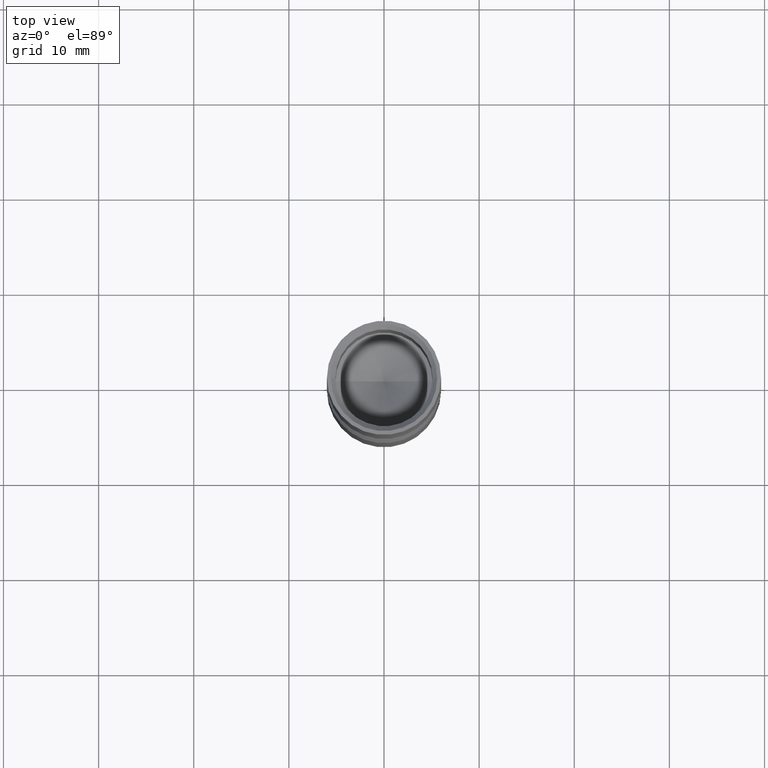
[diagram: clean part render]
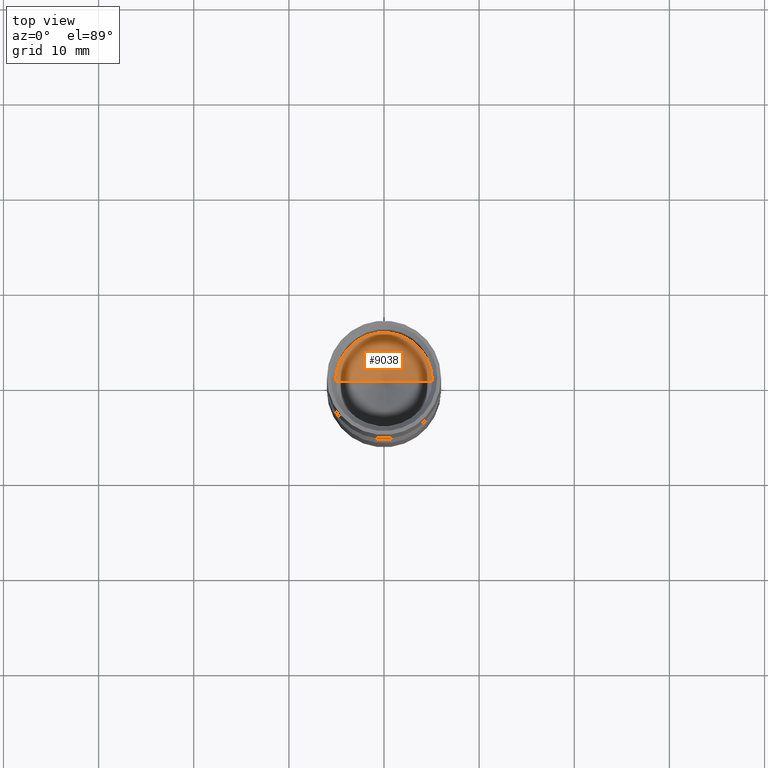
[diagram: same view with one face highlighted and labeled with its STEP entity id]
A machine part, top view. The second image highlights one B-rep face of the part: STEP entity #9038.
In plain terms, the highlighted conical surface has half-angle 59 deg.
Its self-contained STEP definition (entity closure, byte-faithful):
#560 = DIRECTION ( 'NONE',  ( 1.000000000000000000, 0.000000000000000000, 0.000000000000000000 ) ) ;
#1194 = CARTESIAN_POINT ( 'NONE',  ( -5.099999999999994316, 6.245698675651494922E-16, 17.49999999999999645 ) ) ;
#1928 = VECTOR ( 'NONE', #12572, 1000.000000000000000 ) ;
#2230 = CARTESIAN_POINT ( 'NONE',  ( -5.696753262146109040E-15, 0.000000000000000000, 14.43561084295943964 ) ) ;
#2293 = CARTESIAN_POINT ( 'NONE',  ( -5.099999999999994316, 6.245698675651494922E-16, 17.49999999999999645 ) ) ;
#3694 = FACE_OUTER_BOUND ( 'NONE', #7381, .T. ) ;
#4118 = VERTEX_POINT ( 'NONE', #8355 ) ;
#4184 = EDGE_CURVE ( 'NONE', #4186, #12823, #10750, .T. ) ;
#4186 = VERTEX_POINT ( 'NONE', #2230 ) ;
#4261 = CIRCLE ( 'NONE', #4994, 5.099999999999994316 ) ;
#4467 = LINE ( 'NONE', #7958, #12819 ) ;
#4911 = DIRECTION ( 'NONE',  ( 0.8571673007021117785, 0.000000000000000000, 0.5150380749100550437 ) ) ;
#4994 = AXIS2_PLACEMENT_3D ( 'NONE', #11163, #11499, #6759 ) ;
#5639 = CONICAL_SURFACE ( 'NONE', #6627, 5.099999999999994316, 1.029744258676653423 ) ;
#6627 = AXIS2_PLACEMENT_3D ( 'NONE', #11969, #6877, #560 ) ;
#6715 = ORIENTED_EDGE ( 'NONE', *, *, #4184, .F. ) ;
#6747 = EDGE_CURVE ( 'NONE', #4186, #4118, #4467, .T. ) ;
#6759 = DIRECTION ( 'NONE',  ( 1.000000000000000000, 0.000000000000000000, 0.000000000000000000 ) ) ;
#6877 = DIRECTION ( 'NONE',  ( -0.000000000000000000, -0.000000000000000000, 1.000000000000000000 ) ) ;
#7381 = EDGE_LOOP ( 'NONE', ( #6715, #10885, #7761 ) ) ;
#7761 = ORIENTED_EDGE ( 'NONE', *, *, #11374, .T. ) ;
#7958 = CARTESIAN_POINT ( 'NONE',  ( 5.099999999999994316, 0.000000000000000000, 17.49999999999999645 ) ) ;
#8355 = CARTESIAN_POINT ( 'NONE',  ( 5.099999999999994316, 0.000000000000000000, 17.49999999999999645 ) ) ;
#9038 = ADVANCED_FACE ( 'NONE', ( #3694 ), #5639, .F. ) ;
#10750 = LINE ( 'NONE', #1194, #1928 ) ;
#10885 = ORIENTED_EDGE ( 'NONE', *, *, #6747, .T. ) ;
#11163 = CARTESIAN_POINT ( 'NONE',  ( 0.000000000000000000, 0.000000000000000000, 17.49999999999999645 ) ) ;
#11374 = EDGE_CURVE ( 'NONE', #4118, #12823, #4261, .T. ) ;
#11499 = DIRECTION ( 'NONE',  ( -0.000000000000000000, -0.000000000000000000, 1.000000000000000000 ) ) ;
#11969 = CARTESIAN_POINT ( 'NONE',  ( 0.000000000000000000, 0.000000000000000000, 17.49999999999999645 ) ) ;
#12572 = DIRECTION ( 'NONE',  ( -0.8571673007021117785, 1.049727191138617956E-16, 0.5150380749100550437 ) ) ;
#12819 = VECTOR ( 'NONE', #4911, 1000.000000000000000 ) ;
#12823 = VERTEX_POINT ( 'NONE', #2293 ) ;